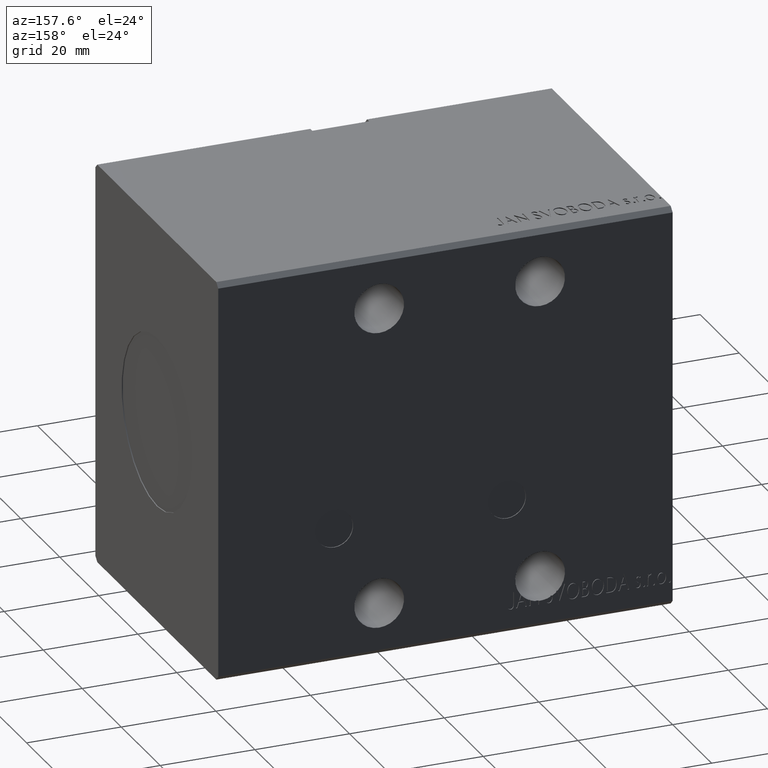
[diagram: clean part render]
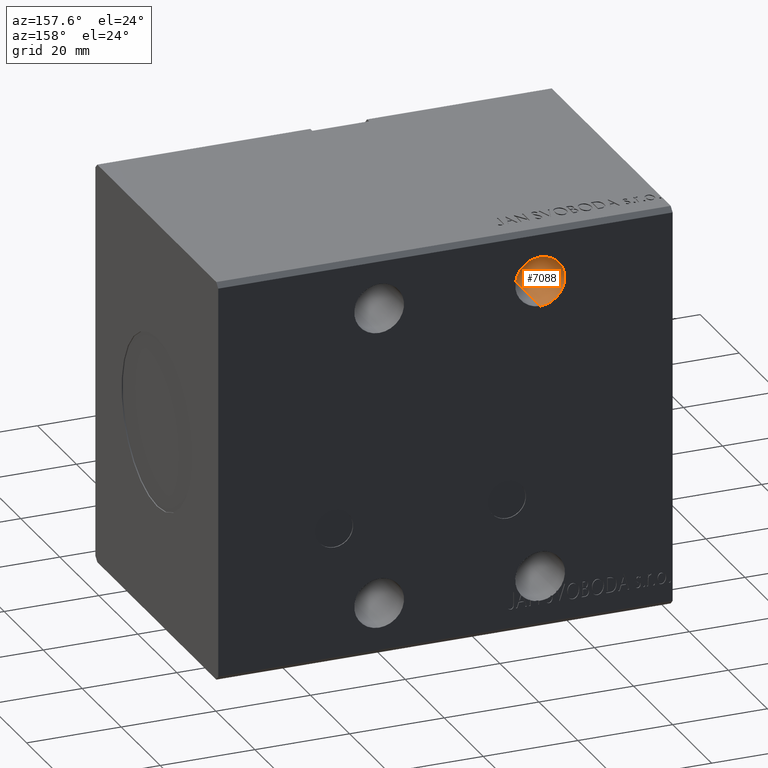
[diagram: same view with one face highlighted and labeled with its STEP entity id]
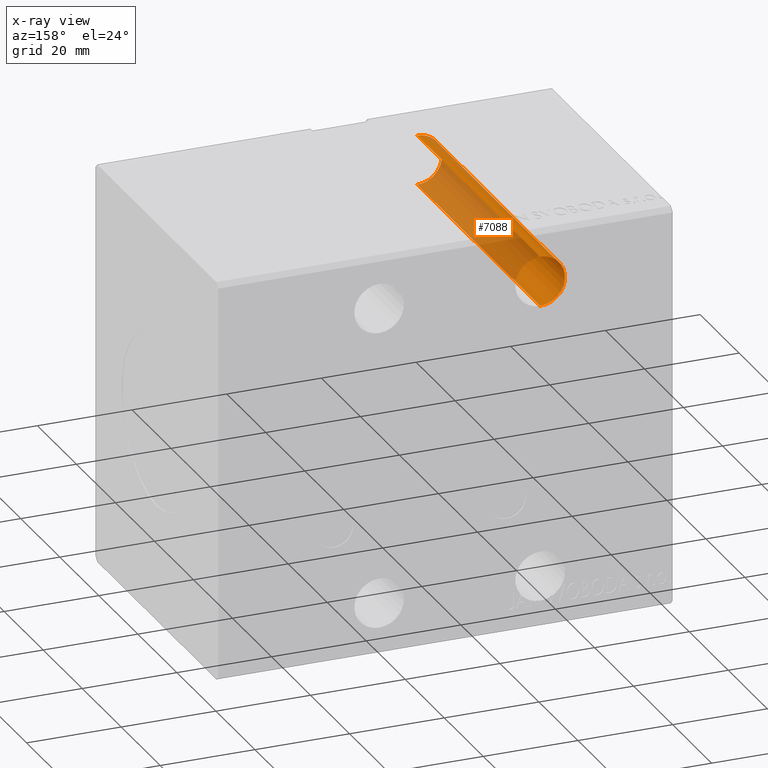
[diagram: x-ray of the same camera — body ghosted, the highlighted face saturated]
A machine part, auxiliary view. The second image highlights one B-rep face of the part: STEP entity #7088.
The next image is the same camera in x-ray: the body ghosted, the highlighted face saturated — about 62% of this face is hidden behind the body in this view.
In plain terms, the highlighted cylindrical surface (edge-blend (fillet) strip) has radius 5.25 mm, axis along (-0, -1, -0).
Its self-contained STEP definition (entity closure, byte-faithful):
#607 = VERTEX_POINT ( 'NONE', #12751 ) ;
#638 = VERTEX_POINT ( 'NONE', #3438 ) ;
#834 = EDGE_CURVE ( 'NONE', #8407, #28974, #23272, .T. ) ;
#1090 = EDGE_CURVE ( 'NONE', #28306, #5386, #2797, .T. ) ;
#1352 = CARTESIAN_POINT ( 'NONE',  ( 27.99999999999999645, -31.30000000000544702, 31.50000000000000000 ) ) ;
#1448 = LINE ( 'NONE', #17589, #40758 ) ;
#1535 = EDGE_CURVE ( 'NONE', #5916, #13750, #9448, .T. ) ;
#1829 = CIRCLE ( 'NONE', #12390, 5.249999999999997335 ) ;
#2370 = DIRECTION ( 'NONE',  ( 0.000000000000000000, 0.000000000000000000, 1.000000000000000000 ) ) ;
#2797 = CIRCLE ( 'NONE', #5431, 5.249999999999997335 ) ;
#3092 = CARTESIAN_POINT ( 'NONE',  ( 27.99999999999999645, 31.50000000000002842, 26.25000000000000355 ) ) ;
#3438 = CARTESIAN_POINT ( 'NONE',  ( 25.51590622482807191, -31.30000000000002203, 36.12512465952564611 ) ) ;
#3630 = EDGE_CURVE ( 'NONE', #607, #24441, #11394, .T. ) ;
#3739 = LINE ( 'NONE', #31493, #39902 ) ;
#4119 = ORIENTED_EDGE ( 'NONE', *, *, #1535, .F. ) ;
#4347 = CARTESIAN_POINT ( 'NONE',  ( 27.99999999999999645, -31.50000000000000000, 26.25000000000000000 ) ) ;
#4422 = VECTOR ( 'NONE', #11691, 1000.000000000000000 ) ;
#5000 = EDGE_CURVE ( 'NONE', #20650, #5916, #34432, .T. ) ;
#5276 = VERTEX_POINT ( 'NONE', #8030 ) ;
#5386 = VERTEX_POINT ( 'NONE', #5944 ) ;
#5431 = AXIS2_PLACEMENT_3D ( 'NONE', #12660, #34020, #25296 ) ;
#5573 = CARTESIAN_POINT ( 'NONE',  ( 25.77627583546970769, -31.50000000000002132, 36.25579129484084007 ) ) ;
#5679 = CYLINDRICAL_SURFACE ( 'NONE', #12624, 5.249999999999997335 ) ;
#5900 = CARTESIAN_POINT ( 'NONE',  ( 25.77627583546969703, -31.30000000000105587, 36.25579129484084717 ) ) ;
#5916 = VERTEX_POINT ( 'NONE', #3092 ) ;
#5944 = CARTESIAN_POINT ( 'NONE',  ( 27.99999999999999645, -31.50000000000000000, 36.74999999999999289 ) ) ;
#6096 = CARTESIAN_POINT ( 'NONE',  ( 27.99999999999999645, -31.30000000000002203, 31.50000000000000000 ) ) ;
#6099 = LINE ( 'NONE', #8790, #4422 ) ;
#6291 = DIRECTION ( 'NONE',  ( 0.000000000000000000, 1.000000000000000000, 0.000000000000000000 ) ) ;
#6858 = CARTESIAN_POINT ( 'NONE',  ( 24.56673180715703353, -31.30000000000002203, 35.47179676167006335 ) ) ;
#7088 = ADVANCED_FACE ( 'NONE', ( #34054 ), #5679, .F. ) ;
#8030 = CARTESIAN_POINT ( 'NONE',  ( 24.34017197029173829, -31.50000000000000000, 35.26406147571498906 ) ) ;
#8407 = VERTEX_POINT ( 'NONE', #27596 ) ;
#8790 = CARTESIAN_POINT ( 'NONE',  ( 24.56673180715703353, 31.50000000000002842, 35.47179676167006335 ) ) ;
#9448 = LINE ( 'NONE', #22490, #36502 ) ;
#9664 = VECTOR ( 'NONE', #10347, 1000.000000000000000 ) ;
#10336 = ORIENTED_EDGE ( 'NONE', *, *, #15108, .T. ) ;
#10347 = DIRECTION ( 'NONE',  ( -0.000000000000000000, -1.000000000000000000, -5.507058653894625853E-17 ) ) ;
#11394 = CIRCLE ( 'NONE', #27950, 5.249999999999997335 ) ;
#11484 = CARTESIAN_POINT ( 'NONE',  ( 27.99999999999999645, 31.50000000000002842, 36.75000000000000000 ) ) ;
#11691 = DIRECTION ( 'NONE',  ( 0.000000000000000000, 1.000000000000000000, 5.507058653894625853E-17 ) ) ;
#11700 = DIRECTION ( 'NONE',  ( -0.000000000000000000, 1.000000000000000000, 0.000000000000000000 ) ) ;
#12390 = AXIS2_PLACEMENT_3D ( 'NONE', #17695, #40266, #2370 ) ;
#12572 = EDGE_CURVE ( 'NONE', #28306, #22734, #1448, .T. ) ;
#12579 = ORIENTED_EDGE ( 'NONE', *, *, #3630, .F. ) ;
#12624 = AXIS2_PLACEMENT_3D ( 'NONE', #30743, #14997, #15591 ) ;
#12660 = CARTESIAN_POINT ( 'NONE',  ( 27.99999999999999645, -31.50000000000000000, 31.49999999999999289 ) ) ;
#12751 = CARTESIAN_POINT ( 'NONE',  ( 24.56673180715703353, -31.50000000000001421, 35.47179676167005624 ) ) ;
#12823 = ORIENTED_EDGE ( 'NONE', *, *, #29061, .T. ) ;
#13348 = EDGE_CURVE ( 'NONE', #13750, #5276, #1829, .T. ) ;
#13750 = VERTEX_POINT ( 'NONE', #4347 ) ;
#13837 = ORIENTED_EDGE ( 'NONE', *, *, #12572, .T. ) ;
#14067 = DIRECTION ( 'NONE',  ( 0.000000000000000000, 1.000000000000000000, 0.000000000000000000 ) ) ;
#14081 = CARTESIAN_POINT ( 'NONE',  ( 27.99999999999999645, 31.50000000000002842, 31.50000000000000000 ) ) ;
#14391 = ORIENTED_EDGE ( 'NONE', *, *, #834, .F. ) ;
#14514 = EDGE_CURVE ( 'NONE', #20650, #5386, #28796, .T. ) ;
#14709 = CARTESIAN_POINT ( 'NONE',  ( 24.34017197029173829, 31.50000000000002842, 35.26406147571499616 ) ) ;
#14997 = DIRECTION ( 'NONE',  ( -0.000000000000000000, -1.000000000000000000, -5.507058653894625853E-17 ) ) ;
#15108 = EDGE_CURVE ( 'NONE', #22734, #638, #35492, .T. ) ;
#15292 = EDGE_CURVE ( 'NONE', #607, #28974, #6099, .T. ) ;
#15343 = AXIS2_PLACEMENT_3D ( 'NONE', #6096, #6291, #27839 ) ;
#15591 = DIRECTION ( 'NONE',  ( 0.000000000000000000, 0.000000000000000000, -1.000000000000000000 ) ) ;
#15637 = ORIENTED_EDGE ( 'NONE', *, *, #5000, .F. ) ;
#17270 = VECTOR ( 'NONE', #30242, 1000.000000000000000 ) ;
#17294 = DIRECTION ( 'NONE',  ( 0.000000000000000000, -9.344377123928406267E-13, -1.000000000000000000 ) ) ;
#17589 = CARTESIAN_POINT ( 'NONE',  ( 25.77627583546970769, -31.30000000000002203, 36.25579129484084007 ) ) ;
#17636 = AXIS2_PLACEMENT_3D ( 'NONE', #1352, #36763, #17294 ) ;
#17695 = CARTESIAN_POINT ( 'NONE',  ( 27.99999999999999645, -31.50000000000000000, 31.49999999999999289 ) ) ;
#20650 = VERTEX_POINT ( 'NONE', #11484 ) ;
#22290 = DIRECTION ( 'NONE',  ( -0.000000000000000000, -1.000000000000000000, -5.507058653894625853E-17 ) ) ;
#22490 = CARTESIAN_POINT ( 'NONE',  ( 27.99999999999999645, 31.50000000000002842, 26.25000000000000355 ) ) ;
#22734 = VERTEX_POINT ( 'NONE', #5900 ) ;
#23272 = CIRCLE ( 'NONE', #15343, 5.249999999999997335 ) ;
#23402 = DIRECTION ( 'NONE',  ( 0.000000000000000000, 0.000000000000000000, -1.000000000000000000 ) ) ;
#24338 = DIRECTION ( 'NONE',  ( 0.000000000000000000, 0.000000000000000000, 1.000000000000000000 ) ) ;
#24441 = VERTEX_POINT ( 'NONE', #35561 ) ;
#24503 = ORIENTED_EDGE ( 'NONE', *, *, #15292, .T. ) ;
#25296 = DIRECTION ( 'NONE',  ( 0.000000000000000000, 0.000000000000000000, 1.000000000000000000 ) ) ;
#26489 = AXIS2_PLACEMENT_3D ( 'NONE', #14081, #26713, #23402 ) ;
#26713 = DIRECTION ( 'NONE',  ( 0.000000000000000000, -1.000000000000000000, -5.507058653894625853E-17 ) ) ;
#27191 = ORIENTED_EDGE ( 'NONE', *, *, #13348, .F. ) ;
#27596 = CARTESIAN_POINT ( 'NONE',  ( 24.34017197029173829, -31.30000000000002203, 35.26406147571499616 ) ) ;
#27839 = DIRECTION ( 'NONE',  ( 0.000000000000000000, 0.000000000000000000, 1.000000000000000000 ) ) ;
#27950 = AXIS2_PLACEMENT_3D ( 'NONE', #40087, #11700, #24338 ) ;
#28306 = VERTEX_POINT ( 'NONE', #5573 ) ;
#28796 = LINE ( 'NONE', #32322, #9664 ) ;
#28974 = VERTEX_POINT ( 'NONE', #6858 ) ;
#29061 = EDGE_CURVE ( 'NONE', #8407, #5276, #31398, .T. ) ;
#30242 = DIRECTION ( 'NONE',  ( -0.000000000000000000, -1.000000000000000000, -5.507058653894625853E-17 ) ) ;
#30299 = ORIENTED_EDGE ( 'NONE', *, *, #1090, .F. ) ;
#30373 = ORIENTED_EDGE ( 'NONE', *, *, #38882, .T. ) ;
#30743 = CARTESIAN_POINT ( 'NONE',  ( 27.99999999999999645, 31.50000000000002842, 31.50000000000000000 ) ) ;
#31398 = LINE ( 'NONE', #14709, #17270 ) ;
#31493 = CARTESIAN_POINT ( 'NONE',  ( 25.51590622482807191, -31.30000000000002203, 36.12512465952564611 ) ) ;
#32322 = CARTESIAN_POINT ( 'NONE',  ( 27.99999999999999645, 31.50000000000002842, 36.75000000000000000 ) ) ;
#33367 = ORIENTED_EDGE ( 'NONE', *, *, #14514, .T. ) ;
#34020 = DIRECTION ( 'NONE',  ( -0.000000000000000000, 1.000000000000000000, 0.000000000000000000 ) ) ;
#34054 = FACE_OUTER_BOUND ( 'NONE', #37751, .T. ) ;
#34432 = CIRCLE ( 'NONE', #26489, 5.249999999999997335 ) ;
#35010 = DIRECTION ( 'NONE',  ( -0.000000000000000000, -1.000000000000000000, -0.000000000000000000 ) ) ;
#35492 = CIRCLE ( 'NONE', #17636, 5.249999999999997335 ) ;
#35561 = CARTESIAN_POINT ( 'NONE',  ( 25.51590622482808612, -31.50000000000000000, 36.12512465952563190 ) ) ;
#36502 = VECTOR ( 'NONE', #22290, 1000.000000000000000 ) ;
#36763 = DIRECTION ( 'NONE',  ( 2.440028945803348379E-14, -1.000000000000000000, 9.345934926773151265E-13 ) ) ;
#37751 = EDGE_LOOP ( 'NONE', ( #15637, #33367, #30299, #13837, #10336, #30373, #12579, #24503, #14391, #12823, #27191, #4119 ) ) ;
#38882 = EDGE_CURVE ( 'NONE', #638, #24441, #3739, .T. ) ;
#39902 = VECTOR ( 'NONE', #35010, 1000.000000000000000 ) ;
#40087 = CARTESIAN_POINT ( 'NONE',  ( 27.99999999999999645, -31.50000000000000000, 31.49999999999999289 ) ) ;
#40266 = DIRECTION ( 'NONE',  ( -0.000000000000000000, 1.000000000000000000, 0.000000000000000000 ) ) ;
#40758 = VECTOR ( 'NONE', #14067, 1000.000000000000000 ) ;